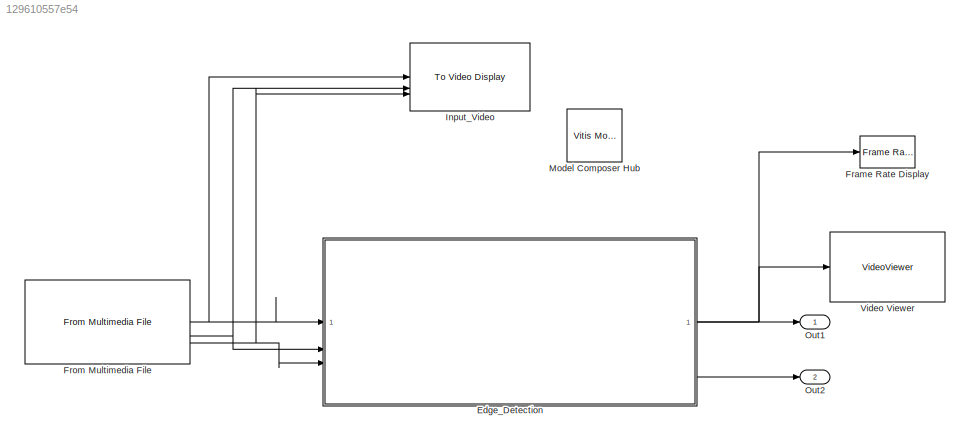
MODEL slx_129610557e54
KIND model
CONFIG AbsTol = auto
CONFIG EnableMultiTasking = on
CONFIG FixedStep = auto
CONFIG MaxStep = auto
CONFIG MinStep = auto
CONFIG RelTol = 1e-3
CONFIG SampleTimeConstraint = Unconstrained
CONFIG SolverName = VariableStepAuto
CONFIG StartTime = 0.0
CONFIG StopTime = 10
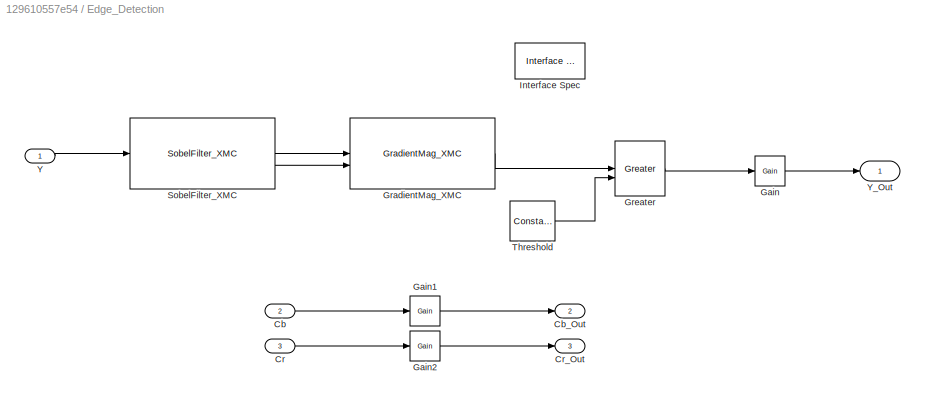
BLOCK [SubSystem] Edge_Detection
BLOCK [Inport] Edge_Detection/Cb
  Port = 2
BLOCK [Outport] Edge_Detection/Cb_Out
  Port = 2
BLOCK [Inport] Edge_Detection/Cr
  Port = 3
BLOCK [Outport] Edge_Detection/Cr_Out
  Port = 3
BLOCK [Reference] Edge_Detection/Gain  REF=hlsBasic/Gain
  SourceBlock = hlsBasic/Gain
  SourceType = Gain
BLOCK [Reference] Edge_Detection/Gain1  REF=hlsBasic/Gain
  SourceBlock = hlsBasic/Gain
  SourceType = Gain
BLOCK [Reference] Edge_Detection/Gain2  REF=hlsBasic/Gain
  SourceBlock = hlsBasic/Gain
  SourceType = Gain
BLOCK [Reference] Edge_Detection/GradientMag_XMC  REF=Sobeledge_lib/GradientMag_XMC
  SourceBlock = Sobeledge_lib/GradientMag_XMC
  SourceType = Import Function
BLOCK [Reference] Edge_Detection/Greater  REF=hlsBasic/Greater
  Description = Performs multiplication
  SourceBlock = hlsBasic/Greater
  SourceType = Greater
BLOCK [Reference] Edge_Detection/Interface Spec  REF=hlsUtilities/Interface Spec
  SourceBlock = hlsUtilities/Interface Spec
  SourceType = Interface Specification
BLOCK [Reference] Edge_Detection/SobelFilter_XMC  REF=Sobeledge_lib/SobelFilter_XMC
  SourceBlock = Sobeledge_lib/SobelFilter_XMC
  SourceType = Import Function
BLOCK [Reference] Edge_Detection/Threshold  REF=hlsBasic/Constant
  Description = Performs multiplication
  SourceBlock = hlsBasic/Constant
  SourceType = Constant
BLOCK [Inport] Edge_Detection/Y
BLOCK [Outport] Edge_Detection/Y_Out
BLOCK [Reference] Frame Rate Display  REF=visionsinks/Frame Rate
Display
  SourceBlock = visionsinks/Frame Rate\nDisplay
  SourceType = Frame Rate Display
BLOCK [Reference] From Multimedia File  REF=dspvision/From Multimedia File
  SourceBlock = dspvision/From Multimedia File
  SourceType = From Multimedia File
BLOCK [Reference] Input_Video  REF=visionsinks/To Video Display
  SourceBlock = visionsinks/To Video Display
  SourceType = To Video Display
BLOCK [Reference] Model Composer Hub  REF=vmcUtilities/Vitis Model Composer Hub
  Description = Performs multiplication
  SourceBlock = vmcUtilities/Vitis Model Composer Hub
  SourceType = VMC Hub
  Tag = genX
  UserDataPersistent = on
BLOCK [Outport] Out1
BLOCK [Outport] Out2
  Port = 2
BLOCK [VideoViewer] Video Viewer
  FigPos = [751 769 598 316]
  ScopeSpecificationString = vipscopes.VideoViewerScopeCfg('CurrentConfiguration', extmgr.ConfigurationSet(extmgr.Configuration('Core','General UI',true),extmgr.Configuration('Core','Source UI',true),extmgr.Configuration('Sources','WiredSimulink',true),extmgr.Configuration('Visuals','Video',true),extmgr.Configuration('Tools','Image Navigation Tools',true),extmgr.Configuration('Tools','Image Tool',true),extmgr.Configuration('T...<+101ch>
  colormapValue = gray(256)
LINE Edge_Detection/Cb:1 -> Edge_Detection/Gain1:1
LINE Edge_Detection/Cr:1 -> Edge_Detection/Gain2:1
LINE Edge_Detection/Gain1:1 -> Edge_Detection/Cb_Out:1
LINE Edge_Detection/Gain2:1 -> Edge_Detection/Cr_Out:1
LINE Edge_Detection/Gain:1 -> Edge_Detection/Y_Out:1
LINE Edge_Detection/GradientMag_XMC:1 -> Edge_Detection/Greater:1
LINE Edge_Detection/Greater:1 -> Edge_Detection/Gain:1
LINE Edge_Detection/SobelFilter_XMC:1 -> Edge_Detection/GradientMag_XMC:1
LINE Edge_Detection/SobelFilter_XMC:2 -> Edge_Detection/GradientMag_XMC:2
LINE Edge_Detection/Threshold:1 -> Edge_Detection/Greater:2
LINE Edge_Detection/Y:1 -> Edge_Detection/SobelFilter_XMC:1
NET Edge_Detection:1 -> Frame Rate Display:1, Video Viewer:1
LINE Edge_Detection:2 -> Out1:1
LINE Edge_Detection:3 -> Out2:1
NET From Multimedia File:1 -> Edge_Detection:1, Input_Video:1
NET From Multimedia File:2 -> Edge_Detection:2, Input_Video:2
NET From Multimedia File:3 -> Edge_Detection:3, Input_Video:3
note: NET lines group one-source signal fan-out (src -> all destinations, sorted); 1:1 wires keep LINE
